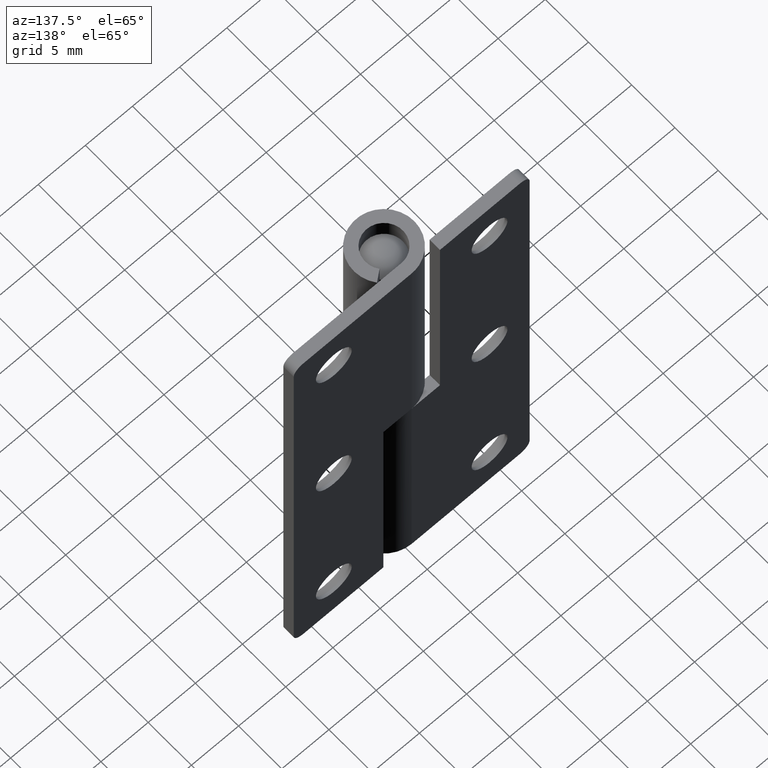
[diagram: clean part render]
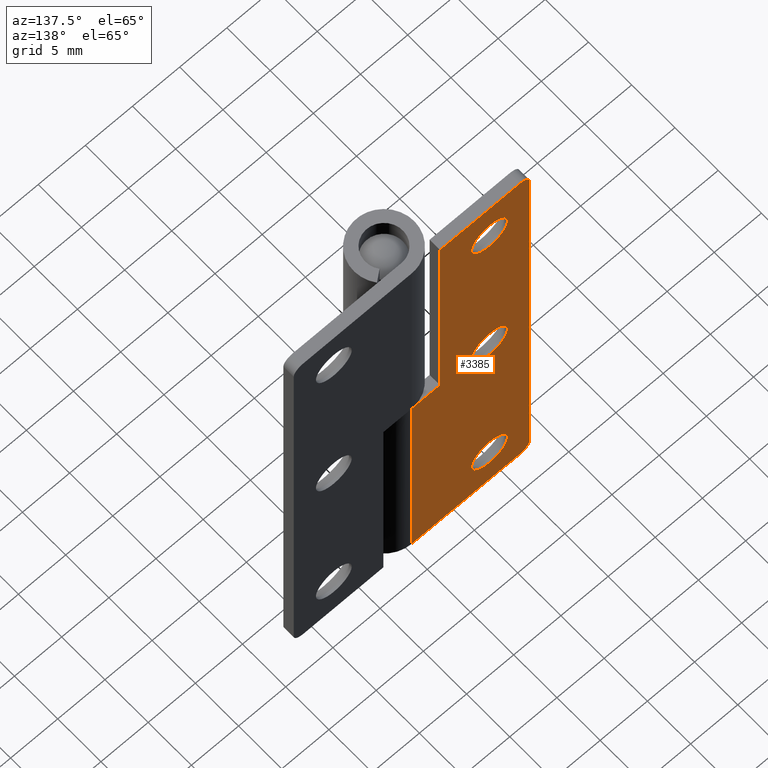
[diagram: same view with one face highlighted and labeled with its STEP entity id]
A machine part, auxiliary view. The second image highlights one B-rep face of the part: STEP entity #3385.
In plain terms, the highlighted face is a freeform B-spline surface patch.
Its self-contained STEP definition (entity closure, byte-faithful):
#2101=CARTESIAN_POINT('',(-6.363281920626562,3.200001000000000,45.224265043400059));
#2102=VERTEX_POINT('',#2101);
#2108=CARTESIAN_POINT('',(-8.250000000000000,3.200001000000000,43.100000000000001));
#2109=VERTEX_POINT('',#2108);
#2110=CARTESIAN_POINT('',(-6.363281920626562,3.200001000000000,45.224265043400067));
#2111=CARTESIAN_POINT('',(-6.350000000000001,3.200000999999999,45.112525827353387));
#2112=CARTESIAN_POINT('',(-6.350000000000001,3.200001000000000,45.0));
#2113=CARTESIAN_POINT('',(-6.350000000000001,3.200001000000000,43.100000000000001));
#2114=CARTESIAN_POINT('',(-8.250000000000000,3.200001000000000,43.100000000000001));
#2122=(BOUNDED_CURVE()B_SPLINE_CURVE(2,(#2110,#2111,#2112,#2113,#2114),.UNSPECIFIED.,.F.,.U.)B_SPLINE_CURVE_WITH_KNOTS((3,2,3),(0.229562473513029,0.250000000000000,0.500000000000000),.UNSPECIFIED.)CURVE()GEOMETRIC_REPRESENTATION_ITEM()RATIONAL_B_SPLINE_CURVE((0.956026754182759,0.976055948330583,1.0,0.707106781186547,1.0))REPRESENTATION_ITEM(''));
#2123=EDGE_CURVE('',#2102,#2109,#2122,.T.);
#2125=CARTESIAN_POINT('',(-10.146456096177589,3.200001000000000,44.884007776137061));
#2126=VERTEX_POINT('',#2125);
#2127=CARTESIAN_POINT('',(-8.250000000000000,3.200001000000000,43.100000000000001));
#2128=CARTESIAN_POINT('',(-10.037341527082511,3.200000999999999,43.100000000000009));
#2129=CARTESIAN_POINT('',(-10.146456096177591,3.200001000000000,44.884007776137061));
#2137=(BOUNDED_CURVE()B_SPLINE_CURVE(2,(#2127,#2128,#2129),.UNSPECIFIED.,.F.,.U.)B_SPLINE_CURVE_WITH_KNOTS((3,3),(0.500000000000000,0.739332962238277),.UNSPECIFIED.)CURVE()GEOMETRIC_REPRESENTATION_ITEM()RATIONAL_B_SPLINE_CURVE((1.0,0.719603993287491,0.976072041665290))REPRESENTATION_ITEM(''));
#2138=EDGE_CURVE('',#2109,#2126,#2137,.T.);
#2172=CARTESIAN_POINT('',(-8.250000000000000,3.200001000000000,46.899999999999999));
#2173=VERTEX_POINT('',#2172);
#2174=CARTESIAN_POINT('',(-10.146456096177591,3.200000999999999,44.884007776137061));
#2175=CARTESIAN_POINT('',(-10.150000000000004,3.200001000000000,44.941949749712336));
#2176=CARTESIAN_POINT('',(-10.150000000000000,3.200001000000000,45.0));
#2177=CARTESIAN_POINT('',(-10.150000000000000,3.200001000000000,46.899999999999984));
#2178=CARTESIAN_POINT('',(-8.250000000000000,3.200001000000000,46.899999999999999));
#2186=(BOUNDED_CURVE()B_SPLINE_CURVE(2,(#2174,#2175,#2176,#2177,#2178),.UNSPECIFIED.,.F.,.U.)B_SPLINE_CURVE_WITH_KNOTS((3,2,3),(0.739332962238278,0.750000000000000,1.0),.UNSPECIFIED.)CURVE()GEOMETRIC_REPRESENTATION_ITEM()RATIONAL_B_SPLINE_CURVE((0.976072041665292,0.987502787899058,1.0,0.707106781186547,1.0))REPRESENTATION_ITEM(''));
#2187=EDGE_CURVE('',#2126,#2173,#2186,.T.);
#2189=CARTESIAN_POINT('',(-8.250000000000000,3.200001000000000,46.899999999999999));
#2190=CARTESIAN_POINT('',(-6.562468400718704,3.200001000000000,46.899999999999991));
#2191=CARTESIAN_POINT('',(-6.363281920626562,3.200001000000000,45.224265043400059));
#2199=(BOUNDED_CURVE()B_SPLINE_CURVE(2,(#2189,#2190,#2191),.UNSPECIFIED.,.F.,.U.)B_SPLINE_CURVE_WITH_KNOTS((3,3),(0.0,0.229562473513029),.UNSPECIFIED.)CURVE()GEOMETRIC_REPRESENTATION_ITEM()RATIONAL_B_SPLINE_CURVE((1.0,0.731050832855965,0.956026754182759))REPRESENTATION_ITEM(''));
#2200=EDGE_CURVE('',#2173,#2102,#2199,.T.);
#2445=CARTESIAN_POINT('',(-6.363281920626561,3.200001000000000,25.224265043400049));
#2446=VERTEX_POINT('',#2445);
#2452=CARTESIAN_POINT('',(-8.250000000000000,3.200001000000000,23.100000000000001));
#2453=VERTEX_POINT('',#2452);
#2454=CARTESIAN_POINT('',(-6.363281920626561,3.200001000000001,25.224265043400052));
#2455=CARTESIAN_POINT('',(-6.350000000000001,3.200001000000000,25.112525827353384));
#2456=CARTESIAN_POINT('',(-6.350000000000001,3.200001000000000,25.0));
#2457=CARTESIAN_POINT('',(-6.350000000000001,3.200001000000000,23.100000000000005));
#2458=CARTESIAN_POINT('',(-8.250000000000000,3.200001000000000,23.100000000000001));
#2466=(BOUNDED_CURVE()B_SPLINE_CURVE(2,(#2454,#2455,#2456,#2457,#2458),.UNSPECIFIED.,.F.,.U.)B_SPLINE_CURVE_WITH_KNOTS((3,2,3),(0.229562473513029,0.250000000000000,0.500000000000000),.UNSPECIFIED.)CURVE()GEOMETRIC_REPRESENTATION_ITEM()RATIONAL_B_SPLINE_CURVE((0.956026754182760,0.976055948330584,1.0,0.707106781186547,1.0))REPRESENTATION_ITEM(''));
#2467=EDGE_CURVE('',#2446,#2453,#2466,.T.);
#2469=CARTESIAN_POINT('',(-10.146456096177589,3.200001000000000,24.884007776137061));
#2470=VERTEX_POINT('',#2469);
#2471=CARTESIAN_POINT('',(-8.250000000000000,3.200001000000000,23.100000000000001));
#2472=CARTESIAN_POINT('',(-10.037341527082534,3.200001000000000,23.099999999999994));
#2473=CARTESIAN_POINT('',(-10.146456096177591,3.200001000000000,24.884007776137061));
#2481=(BOUNDED_CURVE()B_SPLINE_CURVE(2,(#2471,#2472,#2473),.UNSPECIFIED.,.F.,.U.)B_SPLINE_CURVE_WITH_KNOTS((3,3),(0.500000000000000,0.739332962238279),.UNSPECIFIED.)CURVE()GEOMETRIC_REPRESENTATION_ITEM()RATIONAL_B_SPLINE_CURVE((1.0,0.719603993287488,0.976072041665295))REPRESENTATION_ITEM(''));
#2482=EDGE_CURVE('',#2453,#2470,#2481,.T.);
#2516=CARTESIAN_POINT('',(-8.250000000000000,3.200001000000000,26.899999999999999));
#2517=VERTEX_POINT('',#2516);
#2518=CARTESIAN_POINT('',(-10.146456096177591,3.200001000000000,24.884007776137061));
#2519=CARTESIAN_POINT('',(-10.149999999999999,3.200000999999999,24.941949749712343));
#2520=CARTESIAN_POINT('',(-10.150000000000000,3.200001000000000,25.0));
#2521=CARTESIAN_POINT('',(-10.150000000000000,3.200001000000000,26.900000000000006));
#2522=CARTESIAN_POINT('',(-8.250000000000000,3.200001000000000,26.899999999999999));
#2530=(BOUNDED_CURVE()B_SPLINE_CURVE(2,(#2518,#2519,#2520,#2521,#2522),.UNSPECIFIED.,.F.,.U.)B_SPLINE_CURVE_WITH_KNOTS((3,2,3),(0.739332962238278,0.750000000000000,1.0),.UNSPECIFIED.)CURVE()GEOMETRIC_REPRESENTATION_ITEM()RATIONAL_B_SPLINE_CURVE((0.976072041665293,0.987502787899058,1.0,0.707106781186547,1.0))REPRESENTATION_ITEM(''));
#2531=EDGE_CURVE('',#2470,#2517,#2530,.T.);
#2533=CARTESIAN_POINT('',(-8.250000000000000,3.200001000000000,26.899999999999999));
#2534=CARTESIAN_POINT('',(-6.562468400718697,3.200001000000000,26.900000000000002));
#2535=CARTESIAN_POINT('',(-6.363281920626561,3.200001000000001,25.224265043400052));
#2543=(BOUNDED_CURVE()B_SPLINE_CURVE(2,(#2533,#2534,#2535),.UNSPECIFIED.,.F.,.U.)B_SPLINE_CURVE_WITH_KNOTS((3,3),(0.0,0.229562473513029),.UNSPECIFIED.)CURVE()GEOMETRIC_REPRESENTATION_ITEM()RATIONAL_B_SPLINE_CURVE((1.0,0.731050832855964,0.956026754182760))REPRESENTATION_ITEM(''));
#2544=EDGE_CURVE('',#2517,#2446,#2543,.T.);
#2789=CARTESIAN_POINT('',(-6.363281920626562,3.200000999999999,5.224265043400054));
#2790=VERTEX_POINT('',#2789);
#2796=CARTESIAN_POINT('',(-8.250000000000000,3.200001000000000,3.100000000000001));
#2797=VERTEX_POINT('',#2796);
#2798=CARTESIAN_POINT('',(-6.363281920626562,3.200000999999999,5.224265043400054));
#2799=CARTESIAN_POINT('',(-6.350000000000001,3.200001000000001,5.112525827353384));
#2800=CARTESIAN_POINT('',(-6.350000000000001,3.200001000000000,5.0));
#2801=CARTESIAN_POINT('',(-6.350000000000001,3.200001000000000,3.100000000000000));
#2802=CARTESIAN_POINT('',(-8.250000000000000,3.200001000000000,3.100000000000001));
#2810=(BOUNDED_CURVE()B_SPLINE_CURVE(2,(#2798,#2799,#2800,#2801,#2802),.UNSPECIFIED.,.F.,.U.)B_SPLINE_CURVE_WITH_KNOTS((3,2,3),(0.229562473513029,0.250000000000000,0.500000000000000),.UNSPECIFIED.)CURVE()GEOMETRIC_REPRESENTATION_ITEM()RATIONAL_B_SPLINE_CURVE((0.956026754182759,0.976055948330583,1.0,0.707106781186547,1.0))REPRESENTATION_ITEM(''));
#2811=EDGE_CURVE('',#2790,#2797,#2810,.T.);
#2813=CARTESIAN_POINT('',(-10.146456096177589,3.200001000000000,4.884007776137064));
#2814=VERTEX_POINT('',#2813);
#2815=CARTESIAN_POINT('',(-8.250000000000000,3.200001000000000,3.100000000000001));
#2816=CARTESIAN_POINT('',(-10.037341527082534,3.200001000000000,3.100000000000000));
#2817=CARTESIAN_POINT('',(-10.146456096177591,3.200001000000000,4.884007776137064));
#2825=(BOUNDED_CURVE()B_SPLINE_CURVE(2,(#2815,#2816,#2817),.UNSPECIFIED.,.F.,.U.)B_SPLINE_CURVE_WITH_KNOTS((3,3),(0.500000000000000,0.739332962238279),.UNSPECIFIED.)CURVE()GEOMETRIC_REPRESENTATION_ITEM()RATIONAL_B_SPLINE_CURVE((1.0,0.719603993287488,0.976072041665295))REPRESENTATION_ITEM(''));
#2826=EDGE_CURVE('',#2797,#2814,#2825,.T.);
#2860=CARTESIAN_POINT('',(-8.250000000000000,3.200001000000000,6.900000000000000));
#2861=VERTEX_POINT('',#2860);
#2862=CARTESIAN_POINT('',(-10.146456096177591,3.200001000000000,4.884007776137064));
#2863=CARTESIAN_POINT('',(-10.149999999999999,3.200000999999999,4.941949749712345));
#2864=CARTESIAN_POINT('',(-10.150000000000000,3.200001000000000,5.0));
#2865=CARTESIAN_POINT('',(-10.150000000000000,3.200001000000000,6.900000000000000));
#2866=CARTESIAN_POINT('',(-8.250000000000000,3.200001000000000,6.900000000000000));
#2874=(BOUNDED_CURVE()B_SPLINE_CURVE(2,(#2862,#2863,#2864,#2865,#2866),.UNSPECIFIED.,.F.,.U.)B_SPLINE_CURVE_WITH_KNOTS((3,2,3),(0.739332962238278,0.750000000000000,1.0),.UNSPECIFIED.)CURVE()GEOMETRIC_REPRESENTATION_ITEM()RATIONAL_B_SPLINE_CURVE((0.976072041665293,0.987502787899058,1.0,0.707106781186547,1.0))REPRESENTATION_ITEM(''));
#2875=EDGE_CURVE('',#2814,#2861,#2874,.T.);
#2877=CARTESIAN_POINT('',(-8.250000000000000,3.200001000000000,6.900000000000000));
#2878=CARTESIAN_POINT('',(-6.562468400718704,3.200001000000001,6.900000000000000));
#2879=CARTESIAN_POINT('',(-6.363281920626562,3.200000999999999,5.224265043400054));
#2887=(BOUNDED_CURVE()B_SPLINE_CURVE(2,(#2877,#2878,#2879),.UNSPECIFIED.,.F.,.U.)B_SPLINE_CURVE_WITH_KNOTS((3,3),(0.0,0.229562473513029),.UNSPECIFIED.)CURVE()GEOMETRIC_REPRESENTATION_ITEM()RATIONAL_B_SPLINE_CURVE((1.0,0.731050832855964,0.956026754182759))REPRESENTATION_ITEM(''));
#2888=EDGE_CURVE('',#2861,#2790,#2887,.T.);
#2908=CARTESIAN_POINT('',(-3.0,3.200000999999955,25.0));
#2909=VERTEX_POINT('',#2908);
#2915=CARTESIAN_POINT('',(-3.0,3.200000999999955,50.0));
#2916=VERTEX_POINT('',#2915);
#2917=CARTESIAN_POINT('',(-3.0,3.200000999999955,25.0));
#2918=CARTESIAN_POINT('',(-3.0,3.200000999999955,50.0));
#2919=QUASI_UNIFORM_CURVE('',1,(#2917,#2918),.UNSPECIFIED.,.F.,.U.);
#2920=EDGE_CURVE('',#2909,#2916,#2919,.T.);
#2937=CARTESIAN_POINT('',(0.0,3.200000999999955,25.0));
#2938=VERTEX_POINT('',#2937);
#2958=CARTESIAN_POINT('',(0.0,3.200000999999955,25.0));
#2959=CARTESIAN_POINT('',(-3.0,3.200000999999955,25.0));
#2960=QUASI_UNIFORM_CURVE('',1,(#2958,#2959),.UNSPECIFIED.,.F.,.U.);
#2961=EDGE_CURVE('',#2938,#2909,#2960,.T.);
#3031=CARTESIAN_POINT('',(-11.500000000000000,3.200000999999955,50.0));
#3032=VERTEX_POINT('',#3031);
#3038=CARTESIAN_POINT('',(-12.500000000000000,3.200000999999955,49.0));
#3039=VERTEX_POINT('',#3038);
#3040=CARTESIAN_POINT('',(-11.500000000000000,3.200000999999955,50.0));
#3041=CARTESIAN_POINT('',(-12.500000000000000,3.200000999999956,50.0));
#3042=CARTESIAN_POINT('',(-12.500000000000000,3.200000999999955,49.0));
#3050=(BOUNDED_CURVE()B_SPLINE_CURVE(2,(#3040,#3041,#3042),.UNSPECIFIED.,.F.,.U.)CURVE()GEOMETRIC_REPRESENTATION_ITEM()QUASI_UNIFORM_CURVE()RATIONAL_B_SPLINE_CURVE((1.0,0.707106781186548,1.0))REPRESENTATION_ITEM(''));
#3051=EDGE_CURVE('',#3032,#3039,#3050,.T.);
#3092=CARTESIAN_POINT('',(-12.500000000000000,3.200000999999955,1.0));
#3093=VERTEX_POINT('',#3092);
#3099=CARTESIAN_POINT('',(-11.500000000000000,3.200001000000000,0.0));
#3100=VERTEX_POINT('',#3099);
#3101=CARTESIAN_POINT('',(-12.500000000000000,3.200000999999955,1.0));
#3102=CARTESIAN_POINT('',(-12.500000000000000,3.200000999999956,0.0));
#3103=CARTESIAN_POINT('',(-11.500000000000000,3.200001000000000,0.0));
#3111=(BOUNDED_CURVE()B_SPLINE_CURVE(2,(#3101,#3102,#3103),.UNSPECIFIED.,.F.,.U.)CURVE()GEOMETRIC_REPRESENTATION_ITEM()QUASI_UNIFORM_CURVE()RATIONAL_B_SPLINE_CURVE((1.0,0.707106781186548,1.0))REPRESENTATION_ITEM(''));
#3112=EDGE_CURVE('',#3093,#3100,#3111,.T.);
#3214=CARTESIAN_POINT('',(-2.646234E-015,3.200000000000000,0.0));
#3215=VERTEX_POINT('',#3214);
#3216=CARTESIAN_POINT('',(-2.646234E-015,3.200000000000000,0.0));
#3217=CARTESIAN_POINT('',(-11.500000000000000,3.200001000000000,0.0));
#3218=QUASI_UNIFORM_CURVE('',1,(#3216,#3217),.UNSPECIFIED.,.F.,.U.);
#3219=EDGE_CURVE('',#3215,#3100,#3218,.T.);
#3251=CARTESIAN_POINT('',(-12.500000000000000,3.200000999999955,1.0));
#3252=CARTESIAN_POINT('',(-12.500000000000000,3.200000999999955,49.0));
#3253=QUASI_UNIFORM_CURVE('',1,(#3251,#3252),.UNSPECIFIED.,.F.,.U.);
#3254=EDGE_CURVE('',#3093,#3039,#3253,.T.);
#3290=CARTESIAN_POINT('',(-2.646234E-015,3.200000000000000,0.0));
#3291=CARTESIAN_POINT('',(0.0,3.200000999999955,25.0));
#3292=QUASI_UNIFORM_CURVE('',1,(#3290,#3291),.UNSPECIFIED.,.F.,.U.);
#3293=EDGE_CURVE('',#3215,#2938,#3292,.T.);
#3304=CARTESIAN_POINT('',(-3.0,3.200000999999955,50.0));
#3305=CARTESIAN_POINT('',(-11.500000000000000,3.200000999999955,50.0));
#3306=QUASI_UNIFORM_CURVE('',1,(#3304,#3305),.UNSPECIFIED.,.F.,.U.);
#3307=EDGE_CURVE('',#2916,#3032,#3306,.T.);
#3352=CARTESIAN_POINT('',(-13.124374975772570,3.200001000000000,-2.497499903090299));
#3353=CARTESIAN_POINT('',(-13.124374975772570,3.200001000000000,52.497501244194808));
#3354=CARTESIAN_POINT('',(0.624375311048700,3.200001000000000,-2.497499903090299));
#3355=CARTESIAN_POINT('',(0.624375311048700,3.200001000000000,52.497501244194808));
#3356=B_SPLINE_SURFACE_WITH_KNOTS('',1,1,((#3352,#3354),(#3353,#3355)),.UNSPECIFIED.,.F.,.F.,.U.,(2,2),(2,2),(0.0,54.995001147285109),(0.0,13.748750286821270),.UNSPECIFIED.);
#3357=ORIENTED_EDGE('',*,*,#2920,.F.);
#3358=ORIENTED_EDGE('',*,*,#2961,.F.);
#3359=ORIENTED_EDGE('',*,*,#3293,.F.);
#3360=ORIENTED_EDGE('',*,*,#3219,.T.);
#3361=ORIENTED_EDGE('',*,*,#3112,.F.);
#3362=ORIENTED_EDGE('',*,*,#3254,.T.);
#3363=ORIENTED_EDGE('',*,*,#3051,.F.);
#3364=ORIENTED_EDGE('',*,*,#3307,.F.);
#3365=EDGE_LOOP('',(#3357,#3358,#3359,#3360,#3361,#3362,#3363,#3364));
#3366=FACE_OUTER_BOUND('',#3365,.T.);
#3367=ORIENTED_EDGE('',*,*,#2826,.F.);
#3368=ORIENTED_EDGE('',*,*,#2811,.F.);
#3369=ORIENTED_EDGE('',*,*,#2888,.F.);
#3370=ORIENTED_EDGE('',*,*,#2875,.F.);
#3371=EDGE_LOOP('',(#3367,#3368,#3369,#3370));
#3372=FACE_BOUND('',#3371,.T.);
#3373=ORIENTED_EDGE('',*,*,#2482,.F.);
#3374=ORIENTED_EDGE('',*,*,#2467,.F.);
#3375=ORIENTED_EDGE('',*,*,#2544,.F.);
#3376=ORIENTED_EDGE('',*,*,#2531,.F.);
#3377=EDGE_LOOP('',(#3373,#3374,#3375,#3376));
#3378=FACE_BOUND('',#3377,.T.);
#3379=ORIENTED_EDGE('',*,*,#2138,.F.);
#3380=ORIENTED_EDGE('',*,*,#2123,.F.);
#3381=ORIENTED_EDGE('',*,*,#2200,.F.);
#3382=ORIENTED_EDGE('',*,*,#2187,.F.);
#3383=EDGE_LOOP('',(#3379,#3380,#3381,#3382));
#3384=FACE_BOUND('',#3383,.T.);
#3385=ADVANCED_FACE('',(#3366,#3372,#3378,#3384),#3356,.T.);